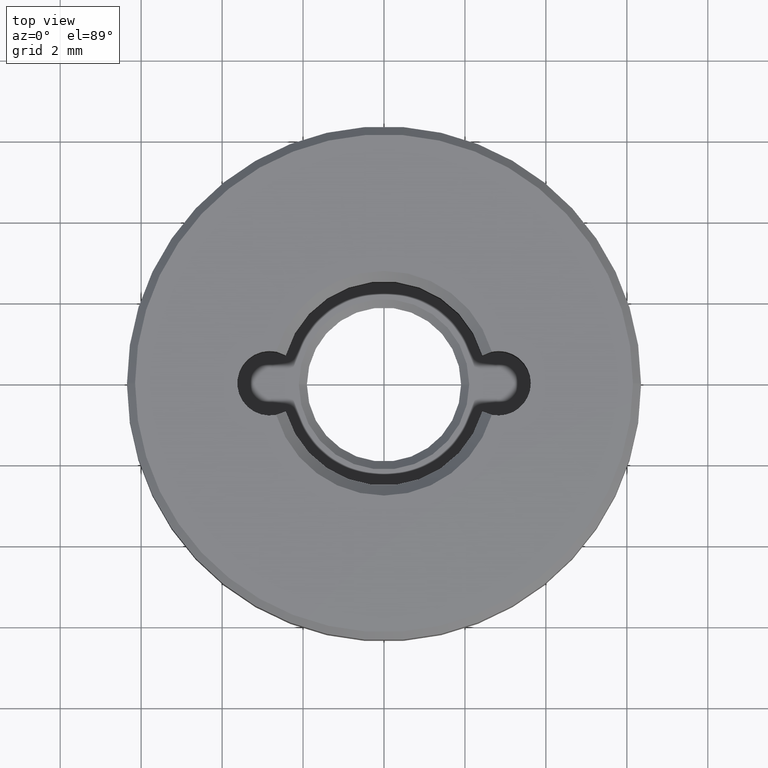
[diagram: clean part render]
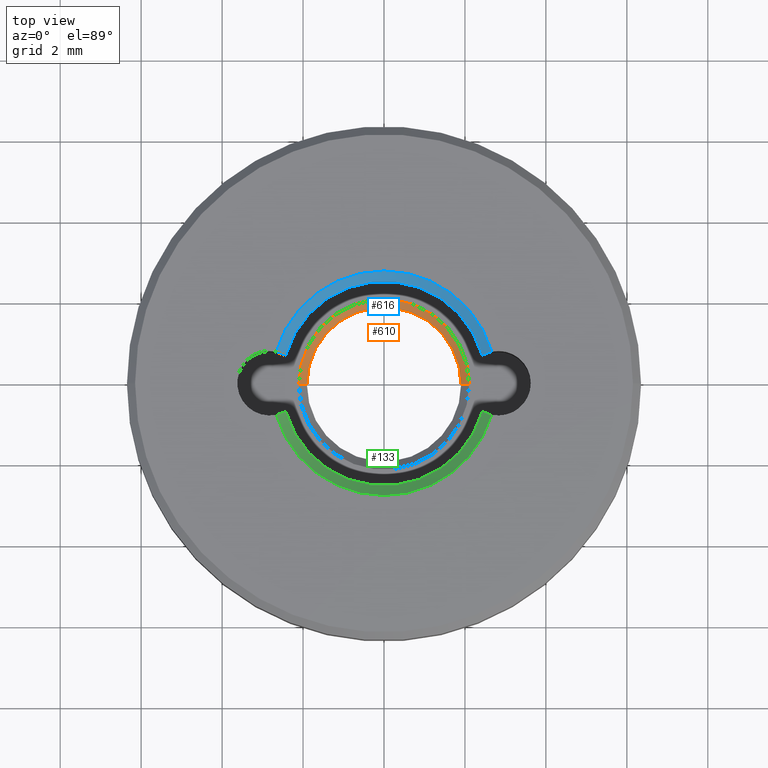
[diagram: same view with three faces highlighted in distinct colors, each labeled with its STEP entity id]
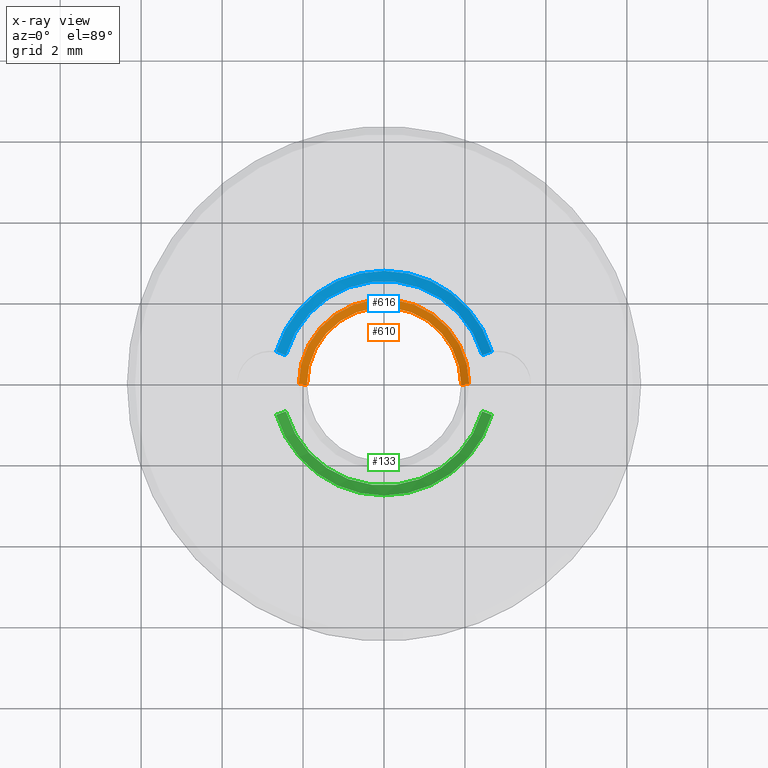
[diagram: x-ray of the same camera — body ghosted, the three highlighted faces saturated]
A machine part, top view with three faces highlighted in distinct colors.
The next image is the same camera in x-ray (body ghosted, the three faces saturated) — at least one of them is partly hidden behind the body in this view.
Their STEP definitions:

[orange] entity #610 — the highlighted conical surface has half-angle 45 deg.
#3 = ORIENTED_EDGE ( 'NONE', *, *, #493, .F. ) ;
#4 = EDGE_CURVE ( 'NONE', #21, #462, #31, .T. ) ;
#21 = VERTEX_POINT ( 'NONE', #150 ) ;
#31 = CIRCLE ( 'NONE', #373, 1.905000000000000027 ) ;
#42 = DIRECTION ( 'NONE',  ( 0.7071067811865490160, 0.000000000000000000, 0.7071067811865460184 ) ) ;
#55 = CARTESIAN_POINT ( 'NONE',  ( 0.000000000000000000, 0.000000000000000000, 0.4000000000000016875 ) ) ;
#56 = VERTEX_POINT ( 'NONE', #698 ) ;
#102 = LINE ( 'NONE', #537, #378 ) ;
#130 = EDGE_CURVE ( 'NONE', #21, #56, #483, .T. ) ;
#150 = CARTESIAN_POINT ( 'NONE',  ( 1.905000000000000027, 0.000000000000000000, 0.4000000000000016875 ) ) ;
#203 = DIRECTION ( 'NONE',  ( 0.000000000000000000, 0.000000000000000000, 1.000000000000000000 ) ) ;
#225 = ORIENTED_EDGE ( 'NONE', *, *, #4, .F. ) ;
#226 = DIRECTION ( 'NONE',  ( -0.000000000000000000, -0.000000000000000000, -1.000000000000000000 ) ) ;
#233 = ORIENTED_EDGE ( 'NONE', *, *, #130, .T. ) ;
#265 = AXIS2_PLACEMENT_3D ( 'NONE', #276, #226, #660 ) ;
#276 = CARTESIAN_POINT ( 'NONE',  ( 0.000000000000000000, 0.000000000000000000, 0.6000000000000000888 ) ) ;
#284 = DIRECTION ( 'NONE',  ( 1.000000000000000000, 0.000000000000000000, 0.000000000000000000 ) ) ;
#314 = CARTESIAN_POINT ( 'NONE',  ( -2.104999999999999094, 2.577881512205177847E-16, 0.6000000000000000888 ) ) ;
#332 = DIRECTION ( 'NONE',  ( 0.000000000000000000, 0.000000000000000000, 1.000000000000000000 ) ) ;
#360 = ORIENTED_EDGE ( 'NONE', *, *, #524, .F. ) ;
#373 = AXIS2_PLACEMENT_3D ( 'NONE', #685, #203, #421 ) ;
#378 = VECTOR ( 'NONE', #422, 1000.000000000000114 ) ;
#406 = AXIS2_PLACEMENT_3D ( 'NONE', #55, #332, #284 ) ;
#408 = VERTEX_POINT ( 'NONE', #314 ) ;
#421 = DIRECTION ( 'NONE',  ( 1.000000000000000000, 0.000000000000000000, 0.000000000000000000 ) ) ;
#422 = DIRECTION ( 'NONE',  ( -0.7071067811865490160, 8.659560562354952580E-17, 0.7071067811865460184 ) ) ;
#458 = CONICAL_SURFACE ( 'NONE', #406, 1.905000000000000027, 0.7853981633974504994 ) ;
#462 = VERTEX_POINT ( 'NONE', #694 ) ;
#479 = CIRCLE ( 'NONE', #265, 2.104999999999999094 ) ;
#483 = LINE ( 'NONE', #577, #631 ) ;
#493 = EDGE_CURVE ( 'NONE', #462, #408, #102, .T. ) ;
#497 = FACE_OUTER_BOUND ( 'NONE', #544, .T. ) ;
#524 = EDGE_CURVE ( 'NONE', #408, #56, #479, .T. ) ;
#537 = CARTESIAN_POINT ( 'NONE',  ( -1.905000000000000027, 2.332952152375707747E-16, 0.4000000000000016875 ) ) ;
#544 = EDGE_LOOP ( 'NONE', ( #3, #225, #233, #360 ) ) ;
#577 = CARTESIAN_POINT ( 'NONE',  ( 1.905000000000000027, 0.000000000000000000, 0.4000000000000016875 ) ) ;
#610 = ADVANCED_FACE ( 'NONE', ( #497 ), #458, .F. ) ;
#631 = VECTOR ( 'NONE', #42, 1000.000000000000114 ) ;
#660 = DIRECTION ( 'NONE',  ( 1.000000000000000000, 0.000000000000000000, 0.000000000000000000 ) ) ;
#685 = CARTESIAN_POINT ( 'NONE',  ( 0.000000000000000000, 0.000000000000000000, 0.4000000000000016875 ) ) ;
#694 = CARTESIAN_POINT ( 'NONE',  ( -1.905000000000000027, 2.332952152375707747E-16, 0.4000000000000016875 ) ) ;
#698 = CARTESIAN_POINT ( 'NONE',  ( 2.104999999999999094, 0.000000000000000000, 0.6000000000000000888 ) ) ;

[blue] entity #616 — the highlighted conical surface has half-angle 45 deg.
#9 = EDGE_LOOP ( 'NONE', ( #118, #328, #132, #281 ) ) ;
#17 = VERTEX_POINT ( 'NONE', #163 ) ;
#32 = CARTESIAN_POINT ( 'NONE',  ( -2.579803107964387721, 0.7661303284904835698, 2.116150911711492721 ) ) ;
#37 = EDGE_CURVE ( 'NONE', #440, #17, #554, .T. ) ;
#59 = DIRECTION ( 'NONE',  ( 0.000000000000000000, 0.000000000000000000, 1.000000000000000000 ) ) ;
#63 = AXIS2_PLACEMENT_3D ( 'NONE', #212, #205, #650 ) ;
#118 = ORIENTED_EDGE ( 'NONE', *, *, #696, .F. ) ;
#132 = ORIENTED_EDGE ( 'NONE', *, *, #684, .F. ) ;
#134 = CARTESIAN_POINT ( 'NONE',  ( -2.662168141592921700, 0.7832533344248834295, 2.200000000000000178 ) ) ;
#137 = B_SPLINE_CURVE_WITH_KNOTS ( 'NONE', 3,
 ( #354, #199, #612, #624 ),
 .UNSPECIFIED., .F., .F.,
 ( 4, 4 ),
 ( 2.815520022824704393E-07, 0.0003544014875863180114 ),
 .UNSPECIFIED. ) ;
#138 = CIRCLE ( 'NONE', #424, 2.775000000000001243 ) ;
#162 = DIRECTION ( 'NONE',  ( 1.000000000000000000, 0.000000000000000000, 0.000000000000000000 ) ) ;
#163 = CARTESIAN_POINT ( 'NONE',  ( -2.427654867256636706, 0.6943463440424815225, 1.949999999999998623 ) ) ;
#199 = CARTESIAN_POINT ( 'NONE',  ( 2.579803107964387276, 0.7661303284904842359, 2.116150911711492721 ) ) ;
#205 = DIRECTION ( 'NONE',  ( 0.000000000000000000, 0.000000000000000000, 1.000000000000000000 ) ) ;
#212 = CARTESIAN_POINT ( 'NONE',  ( 0.000000000000000000, 0.000000000000000000, 1.949999999999998623 ) ) ;
#223 = CARTESIAN_POINT ( 'NONE',  ( -2.662168141592921700, 0.7832533344248834295, 2.200000000000000178 ) ) ;
#241 = CARTESIAN_POINT ( 'NONE',  ( -2.427654867256636706, 0.6943463440424815225, 1.949999999999998623 ) ) ;
#281 = ORIENTED_EDGE ( 'NONE', *, *, #37, .F. ) ;
#328 = ORIENTED_EDGE ( 'NONE', *, *, #355, .F. ) ;
#354 = CARTESIAN_POINT ( 'NONE',  ( 2.662168141592921700, 0.7832533344248840956, 2.200000000000000178 ) ) ;
#355 = EDGE_CURVE ( 'NONE', #520, #647, #138, .T. ) ;
#369 = CONICAL_SURFACE ( 'NONE', #615, 2.524999999999999911, 0.7853981633974482790 ) ;
#420 = CARTESIAN_POINT ( 'NONE',  ( 2.427654867256636706, 0.6943463440424820776, 1.949999999999998623 ) ) ;
#424 = AXIS2_PLACEMENT_3D ( 'NONE', #634, #532, #162 ) ;
#440 = VERTEX_POINT ( 'NONE', #420 ) ;
#449 = DIRECTION ( 'NONE',  ( 1.000000000000000000, 0.000000000000000000, 0.000000000000000000 ) ) ;
#461 = B_SPLINE_CURVE_WITH_KNOTS ( 'NONE', 3,
 ( #241, #681, #32, #134 ),
 .UNSPECIFIED., .F., .F.,
 ( 4, 4 ),
 ( 2.852635793396073392E-07, 0.0003544051991633754271 ),
 .UNSPECIFIED. ) ;
#506 = CARTESIAN_POINT ( 'NONE',  ( 0.000000000000000000, 0.000000000000000000, 1.949999999999998623 ) ) ;
#520 = VERTEX_POINT ( 'NONE', #223 ) ;
#532 = DIRECTION ( 'NONE',  ( -0.000000000000000000, -0.000000000000000000, -1.000000000000000000 ) ) ;
#554 = CIRCLE ( 'NONE', #63, 2.524999999999999911 ) ;
#594 = FACE_OUTER_BOUND ( 'NONE', #9, .T. ) ;
#612 = CARTESIAN_POINT ( 'NONE',  ( 2.501625393944903131, 0.7366765571965204762, 2.032759104116573123 ) ) ;
#615 = AXIS2_PLACEMENT_3D ( 'NONE', #506, #59, #449 ) ;
#616 = ADVANCED_FACE ( 'NONE', ( #594 ), #369, .F. ) ;
#624 = CARTESIAN_POINT ( 'NONE',  ( 2.427654867256636706, 0.6943463440424820776, 1.949999999999998623 ) ) ;
#634 = CARTESIAN_POINT ( 'NONE',  ( 0.000000000000000000, 0.000000000000000000, 2.200000000000000178 ) ) ;
#647 = VERTEX_POINT ( 'NONE', #665 ) ;
#650 = DIRECTION ( 'NONE',  ( 1.000000000000000000, 0.000000000000000000, 0.000000000000000000 ) ) ;
#665 = CARTESIAN_POINT ( 'NONE',  ( 2.662168141592921700, 0.7832533344248840956, 2.200000000000000178 ) ) ;
#681 = CARTESIAN_POINT ( 'NONE',  ( -2.501625393944902243, 0.7366765571965196990, 2.032759104116572235 ) ) ;
#684 = EDGE_CURVE ( 'NONE', #17, #520, #461, .T. ) ;
#696 = EDGE_CURVE ( 'NONE', #647, #440, #137, .T. ) ;

[green] entity #133 — the highlighted conical surface has half-angle 45 deg.
#5 = CARTESIAN_POINT ( 'NONE',  ( 2.427654867256636706, -0.6943463440424815225, 1.949999999999998623 ) ) ;
#10 = AXIS2_PLACEMENT_3D ( 'NONE', #170, #382, #608 ) ;
#40 = DIRECTION ( 'NONE',  ( 1.000000000000000000, 0.000000000000000000, 0.000000000000000000 ) ) ;
#41 = CARTESIAN_POINT ( 'NONE',  ( 2.427654867256636706, -0.6943463440424815225, 1.949999999999998623 ) ) ;
#44 = CIRCLE ( 'NONE', #10, 2.524999999999999911 ) ;
#53 = AXIS2_PLACEMENT_3D ( 'NONE', #439, #376, #40 ) ;
#54 = EDGE_CURVE ( 'NONE', #443, #603, #146, .T. ) ;
#57 = ORIENTED_EDGE ( 'NONE', *, *, #152, .F. ) ;
#133 = ADVANCED_FACE ( 'NONE', ( #274 ), #364, .F. ) ;
#146 = CIRCLE ( 'NONE', #574, 2.775000000000001243 ) ;
#147 = EDGE_LOOP ( 'NONE', ( #549, #699, #57, #626 ) ) ;
#152 = EDGE_CURVE ( 'NONE', #603, #561, #333, .T. ) ;
#154 = DIRECTION ( 'NONE',  ( -0.000000000000000000, -0.000000000000000000, -1.000000000000000000 ) ) ;
#170 = CARTESIAN_POINT ( 'NONE',  ( 0.000000000000000000, 0.000000000000000000, 1.949999999999998623 ) ) ;
#209 = DIRECTION ( 'NONE',  ( 1.000000000000000000, 0.000000000000000000, 0.000000000000000000 ) ) ;
#211 = CARTESIAN_POINT ( 'NONE',  ( 2.579803107964387721, -0.7661303284904835698, 2.116150911711493166 ) ) ;
#264 = CARTESIAN_POINT ( 'NONE',  ( -2.662168141592921700, -0.7832533344248840956, 2.200000000000000178 ) ) ;
#267 = CARTESIAN_POINT ( 'NONE',  ( 2.662168141592921700, -0.7832533344248834295, 2.200000000000000178 ) ) ;
#274 = FACE_OUTER_BOUND ( 'NONE', #147, .T. ) ;
#279 = CARTESIAN_POINT ( 'NONE',  ( -2.662168141592921700, -0.7832533344248840956, 2.200000000000000178 ) ) ;
#333 = B_SPLINE_CURVE_WITH_KNOTS ( 'NONE', 3,
 ( #264, #695, #435, #642 ),
 .UNSPECIFIED., .F., .F.,
 ( 4, 4 ),
 ( 2.815520022824704393E-07, 0.0003544014875863181198 ),
 .UNSPECIFIED. ) ;
#364 = CONICAL_SURFACE ( 'NONE', #53, 2.524999999999999911, 0.7853981633974482790 ) ;
#376 = DIRECTION ( 'NONE',  ( 0.000000000000000000, 0.000000000000000000, 1.000000000000000000 ) ) ;
#382 = DIRECTION ( 'NONE',  ( 0.000000000000000000, 0.000000000000000000, 1.000000000000000000 ) ) ;
#435 = CARTESIAN_POINT ( 'NONE',  ( -2.501625393944902243, -0.7366765571965202541, 2.032759104116572679 ) ) ;
#439 = CARTESIAN_POINT ( 'NONE',  ( 0.000000000000000000, 0.000000000000000000, 1.949999999999998623 ) ) ;
#441 = EDGE_CURVE ( 'NONE', #618, #443, #596, .T. ) ;
#443 = VERTEX_POINT ( 'NONE', #689 ) ;
#549 = ORIENTED_EDGE ( 'NONE', *, *, #441, .F. ) ;
#551 = CARTESIAN_POINT ( 'NONE',  ( -2.427654867256636706, -0.6943463440424820776, 1.949999999999998623 ) ) ;
#553 = EDGE_CURVE ( 'NONE', #561, #618, #44, .T. ) ;
#561 = VERTEX_POINT ( 'NONE', #551 ) ;
#574 = AXIS2_PLACEMENT_3D ( 'NONE', #639, #154, #209 ) ;
#596 = B_SPLINE_CURVE_WITH_KNOTS ( 'NONE', 3,
 ( #41, #641, #211, #267 ),
 .UNSPECIFIED., .F., .F.,
 ( 4, 4 ),
 ( 2.852635792451391310E-07, 0.0003544051991632811557 ),
 .UNSPECIFIED. ) ;
#603 = VERTEX_POINT ( 'NONE', #279 ) ;
#608 = DIRECTION ( 'NONE',  ( 1.000000000000000000, 0.000000000000000000, 0.000000000000000000 ) ) ;
#618 = VERTEX_POINT ( 'NONE', #5 ) ;
#626 = ORIENTED_EDGE ( 'NONE', *, *, #54, .F. ) ;
#639 = CARTESIAN_POINT ( 'NONE',  ( 0.000000000000000000, 0.000000000000000000, 2.200000000000000178 ) ) ;
#641 = CARTESIAN_POINT ( 'NONE',  ( 2.501625393944902687, -0.7366765571965198101, 2.032759104116572679 ) ) ;
#642 = CARTESIAN_POINT ( 'NONE',  ( -2.427654867256636706, -0.6943463440424820776, 1.949999999999998623 ) ) ;
#689 = CARTESIAN_POINT ( 'NONE',  ( 2.662168141592921700, -0.7832533344248834295, 2.200000000000000178 ) ) ;
#695 = CARTESIAN_POINT ( 'NONE',  ( -2.579803107964387276, -0.7661303284904841249, 2.116150911711492721 ) ) ;
#699 = ORIENTED_EDGE ( 'NONE', *, *, #553, .F. ) ;